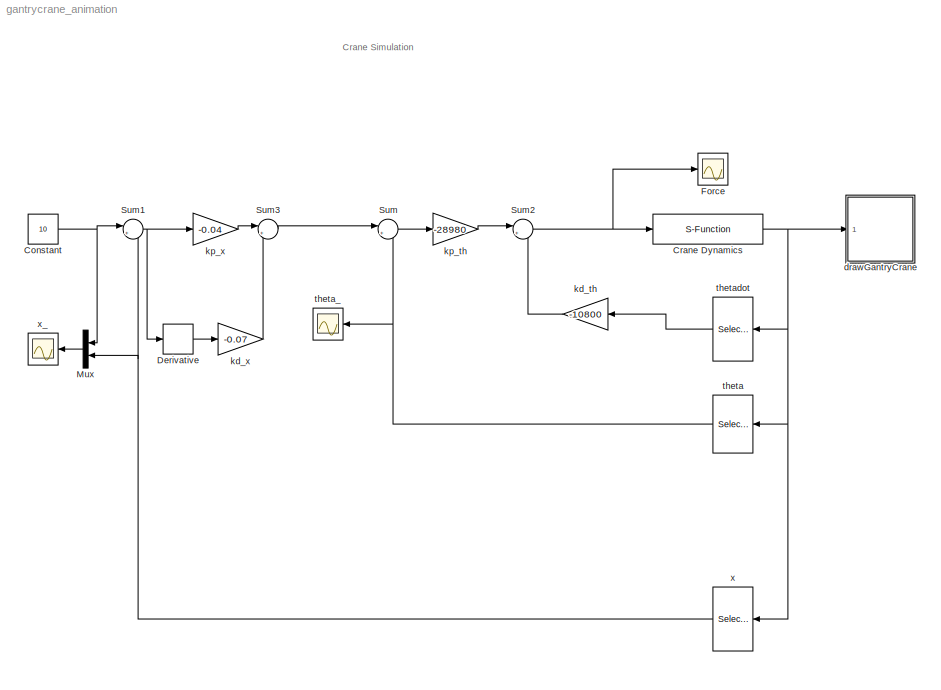
MODEL gantrycrane_animation
KIND model
BLOCK [Constant] Constant
  SID = 50
  Value = 10
BLOCK [S-Function] Crane Dynamics
  EnableBusSupport = off
  FunctionName = crane_dynamics
  Parameters = P
  Ports = [1, 1]
  SID = 30
BLOCK [Derivative] Derivative
  SID = 54
BLOCK [Scope] Force
  DataFormat = StructureWithTime
  Floating = off
  LimitDataPoints = off
  NumInputPorts = 1
  Ports = [1]
  SID = 23
  SampleTime = 0
  ShowLegends = off
  TimeRange = 50
  YMax = 20000
  YMin = -5000
BLOCK [Mux] Mux
  DisplayOption = bar
  Inputs = 2
  Ports = [2, 1]
  SID = 52
BLOCK [Sum] Sum
  IconShape = round
  InputSameDT = off
  Inputs = |+-
  OutDataTypeStr = Inherit: Inherit via internal rule
  Ports = [2, 1]
  SID = 26
  SaturateOnIntegerOverflow = off
BLOCK [Sum] Sum1
  IconShape = round
  InputSameDT = off
  Inputs = |+-
  OutDataTypeStr = Inherit: Inherit via internal rule
  Ports = [2, 1]
  SID = 27
  SaturateOnIntegerOverflow = off
BLOCK [Sum] Sum2
  IconShape = round
  InputSameDT = off
  Inputs = |+-
  OutDataTypeStr = Inherit: Inherit via internal rule
  Ports = [2, 1]
  SID = 28
  SaturateOnIntegerOverflow = off
BLOCK [Sum] Sum3
  IconShape = round
  InputSameDT = off
  Inputs = |++
  OutDataTypeStr = Inherit: Inherit via internal rule
  Ports = [2, 1]
  SID = 29
  SaturateOnIntegerOverflow = off
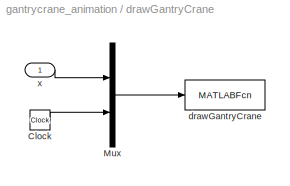
BLOCK [SubSystem] drawGantryCrane
  Ports = [1]
  RequestExecContextInheritance = off
  SID = 31
BLOCK [Clock] drawGantryCrane/Clock
  SID = 33
BLOCK [Mux] drawGantryCrane/Mux
  DisplayOption = bar
  Inputs = 2
  Ports = [2, 1]
  SID = 34
BLOCK [MATLABFcn] drawGantryCrane/drawGantryCrane
  MATLABFcn = drawGantryCrane(u,bar,crane,L1,R1,L2,R2)
  OutputDimensions = 0
  Ports = [1]
  SID = 35
  SampleTime = 0.01
BLOCK [Inport] drawGantryCrane/x
  IconDisplay = Port number
  SID = 32
BLOCK [Gain] kd_th
  Gain = -10800
  Multiplication = Matrix(K*u)
  OutDataTypeStr = Inherit: Inherit via internal rule
  ParamDataTypeStr = Inherit: Inherit via internal rule
  SID = 36
  SaturateOnIntegerOverflow = off
BLOCK [Gain] kd_x
  Gain = -0.07
  Multiplication = Matrix(K*u)
  OutDataTypeStr = Inherit: Inherit via internal rule
  ParamDataTypeStr = Inherit: Inherit via internal rule
  SID = 49
  SaturateOnIntegerOverflow = off
BLOCK [Gain] kp_th
  Gain = -28980
  Multiplication = Matrix(K*u)
  OutDataTypeStr = Inherit: Inherit via internal rule
  ParamDataTypeStr = Inherit: Inherit via internal rule
  SID = 38
  SaturateOnIntegerOverflow = off
BLOCK [Gain] kp_x
  Gain = -0.04
  Multiplication = Matrix(K*u)
  OutDataTypeStr = Inherit: Inherit via internal rule
  ParamDataTypeStr = Inherit: Inherit via internal rule
  SID = 39
  SaturateOnIntegerOverflow = off
BLOCK [Selector] theta
  Indices = [5]
  InputPortWidth = 6
  Ports = [1, 1]
  SID = 40
BLOCK [Scope] theta_
  DataFormat = StructureWithTime
  Floating = off
  LimitDataPoints = off
  NumInputPorts = 1
  Ports = [1]
  SID = 41
  SampleTime = 0
  SaveName = ScopeData1
  ShowLegends = off
  TimeRange = 50
  YMax = 0.3
  YMin = -0.25
BLOCK [Selector] thetadot
  Indices = [2]
  InputPortWidth = 6
  Ports = [1, 1]
  SID = 42
BLOCK [Selector] x
  Indices = [4]
  InputPortWidth = 6
  Ports = [1, 1]
  SID = 43
BLOCK [Scope] x_
  DataFormat = StructureWithTime
  Floating = off
  LimitDataPoints = off
  NumInputPorts = 1
  Ports = [1]
  SID = 44
  SampleTime = 0
  SaveName = ScopeData2
  ShowLegends = off
  TimeRange = 50
  YMax = 12.5
  YMin = 0
ANNOTATION (root): Crane Simulation
NET Constant:1 -> Mux:1, Sum1:1
NET Crane Dynamics:1 -> drawGantryCrane:1, theta:1, thetadot:1, x:1
LINE Derivative:1 -> kd_x:1
LINE Mux:1 -> x_:1
NET Sum1:1 -> Derivative:1, kp_x:1
NET Sum2:1 -> Crane Dynamics:1, Force:1
LINE Sum3:1 -> Sum:1
LINE Sum:1 -> kp_th:1
LINE drawGantryCrane/Clock:1 -> drawGantryCrane/Mux:2
LINE drawGantryCrane/Mux:1 -> drawGantryCrane/drawGantryCrane:1
LINE drawGantryCrane/x:1 -> drawGantryCrane/Mux:1
LINE kd_th:1 -> Sum2:2
LINE kd_x:1 -> Sum3:2
LINE kp_th:1 -> Sum2:1
LINE kp_x:1 -> Sum3:1
NET theta:1 -> Sum:2, theta_:1
LINE thetadot:1 -> kd_th:1
NET x:1 -> Mux:2, Sum1:2
note: NET lines group one-source signal fan-out (src -> all destinations, sorted); 1:1 wires keep LINE
